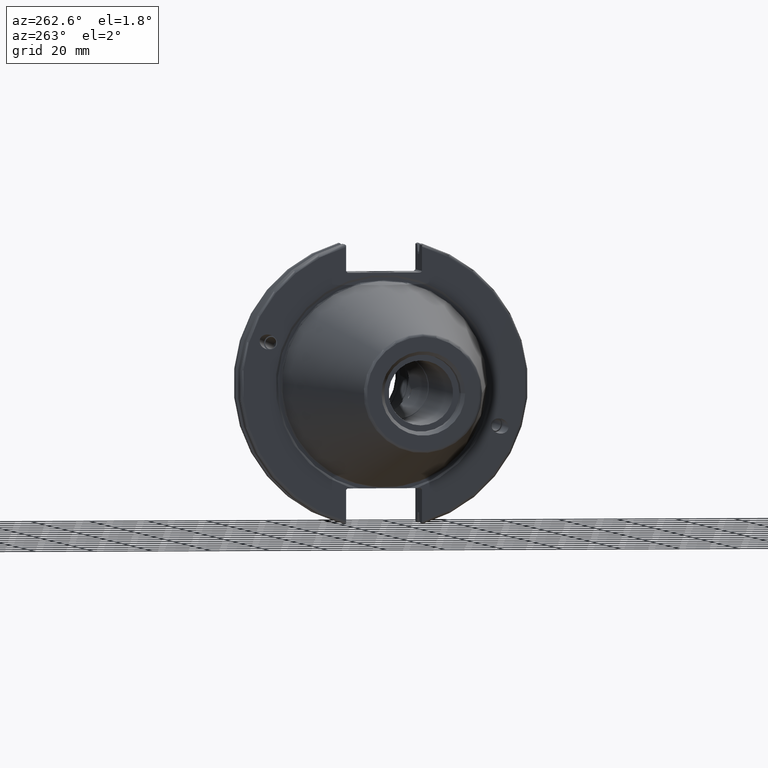
[diagram: clean part render]
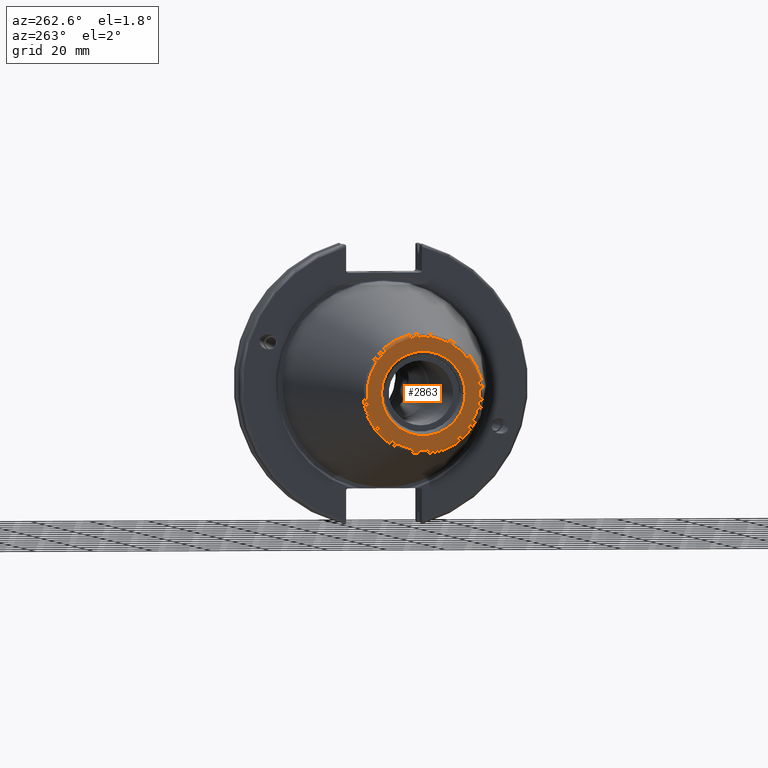
[diagram: same view with one face highlighted and labeled with its STEP entity id]
A machine part, auxiliary view. The second image highlights one B-rep face of the part: STEP entity #2863.
In plain terms, the highlighted planar face has unit normal (-1, 0, 0).
Its self-contained STEP definition (entity closure, byte-faithful):
#556=FACE_BOUND('',#869,.T.);
#586=PLANE('',#3170);
#688=FACE_OUTER_BOUND('',#868,.T.);
#868=EDGE_LOOP('',(#2234));
#869=EDGE_LOOP('',(#2235));
#1058=CIRCLE('',#3169,19.2435889303637);
#1059=CIRCLE('',#3171,14.2875);
#1296=VERTEX_POINT('',#5076);
#1297=VERTEX_POINT('',#5080);
#1648=EDGE_CURVE('',#1296,#1296,#1058,.T.);
#1649=EDGE_CURVE('',#1297,#1297,#1059,.T.);
#2234=ORIENTED_EDGE('',*,*,#1648,.F.);
#2235=ORIENTED_EDGE('',*,*,#1649,.T.);
#2863=ADVANCED_FACE('',(#688,#556),#586,.T.);
#3169=AXIS2_PLACEMENT_3D('',#5078,#3716,#3717);
#3170=AXIS2_PLACEMENT_3D('',#5079,#3718,#3719);
#3171=AXIS2_PLACEMENT_3D('',#5081,#3720,#3721);
#3716=DIRECTION('center_axis',(1.,0.,0.));
#3717=DIRECTION('ref_axis',(0.,-1.,1.83697019872103E-16));
#3718=DIRECTION('center_axis',(-1.,0.,0.));
#3719=DIRECTION('ref_axis',(0.,0.,1.));
#3720=DIRECTION('center_axis',(1.,0.,0.));
#3721=DIRECTION('ref_axis',(0.,0.,-1.));
#5076=CARTESIAN_POINT('',(-101.6,-2.35665995876774E-15,19.2435889303637));
#5078=CARTESIAN_POINT('Origin',(-101.6,0.,0.));
#5079=CARTESIAN_POINT('Origin',(-101.6,20.1083333333333,0.));
#5080=CARTESIAN_POINT('',(-101.6,-14.2875,-1.74971411428178E-15));
#5081=CARTESIAN_POINT('Origin',(-101.6,0.,0.));